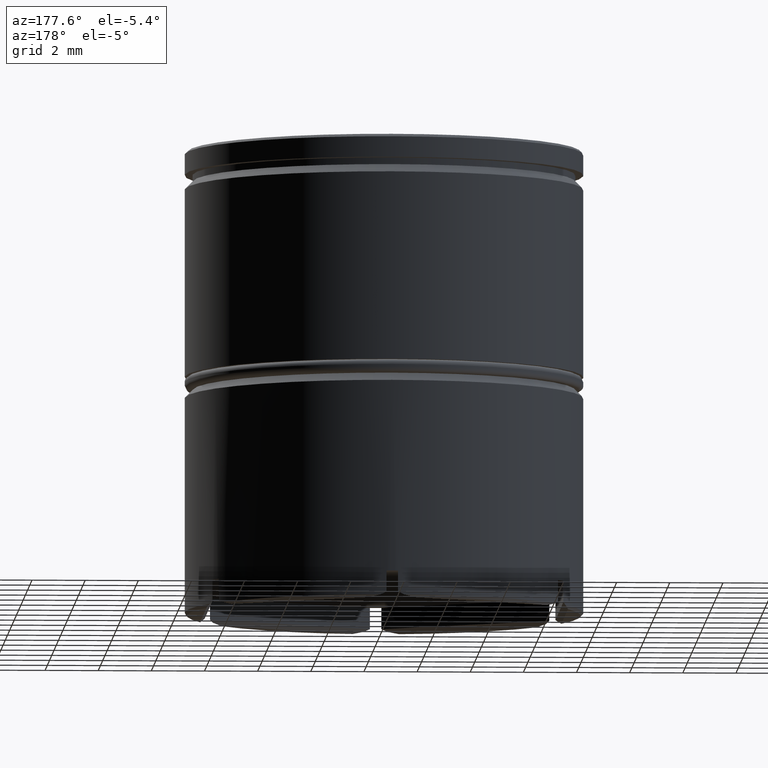
[diagram: clean part render]
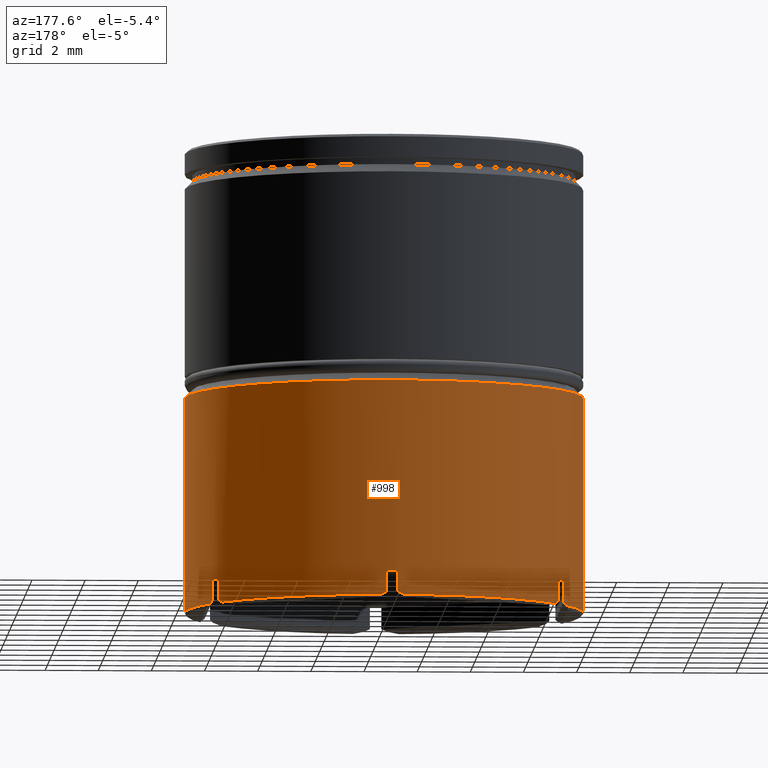
[diagram: same view with one face highlighted and labeled with its STEP entity id]
A machine part, auxiliary view. The second image highlights one B-rep face of the part: STEP entity #998.
In plain terms, the highlighted cylindrical surface (partial cylindrical patch) has radius 7.5 mm, axis along (-0, -0, 1).
Its self-contained STEP definition (entity closure, byte-faithful):
#3 = CIRCLE ( 'NONE', #922, 7.500000000000000000 ) ;
#8 = CARTESIAN_POINT ( 'NONE',  ( 0.000000000000000000, 0.000000000000000000, -17.40000000000000568 ) ) ;
#17 = ORIENTED_EDGE ( 'NONE', *, *, #778, .F. ) ;
#20 = AXIS2_PLACEMENT_3D ( 'NONE', #859, #960, #1207 ) ;
#22 = CARTESIAN_POINT ( 'NONE',  ( -6.700000000000007283, 3.370459909270529408, -17.40000000000000568 ) ) ;
#24 = VECTOR ( 'NONE', #1596, 1000.000000000000000 ) ;
#43 = LINE ( 'NONE', #1532, #552 ) ;
#65 = CARTESIAN_POINT ( 'NONE',  ( -0.2870446246139899404, 7.494852000398866565, -17.33425454225702822 ) ) ;
#87 = DIRECTION ( 'NONE',  ( -0.000000000000000000, -0.000000000000000000, 1.000000000000000000 ) ) ;
#98 = ORIENTED_EDGE ( 'NONE', *, *, #1132, .T. ) ;
#105 = DIRECTION ( 'NONE',  ( -0.000000000000000000, -0.000000000000000000, 1.000000000000000000 ) ) ;
#135 = DIRECTION ( 'NONE',  ( 0.000000000000000000, 0.000000000000000000, -1.000000000000000000 ) ) ;
#138 = EDGE_CURVE ( 'NONE', #805, #1565, #1579, .T. ) ;
#158 = CARTESIAN_POINT ( 'NONE',  ( 6.308493677530949029, 4.056859455903633283, -17.36759018716113090 ) ) ;
#160 = CIRCLE ( 'NONE', #427, 7.500000000000000000 ) ;
#170 = ORIENTED_EDGE ( 'NONE', *, *, #887, .T. ) ;
#172 = VERTEX_POINT ( 'NONE', #1363 ) ;
#176 = DIRECTION ( 'NONE',  ( -0.000000000000000000, -0.000000000000000000, 1.000000000000000000 ) ) ;
#180 = VERTEX_POINT ( 'NONE', #848 ) ;
#185 = CARTESIAN_POINT ( 'NONE',  ( 0.2149554298195403834, 7.496918978032981684, -17.29999999999999716 ) ) ;
#188 = CARTESIAN_POINT ( 'NONE',  ( 0.3590965096301930726, 7.491745512307133481, -17.36759018716113090 ) ) ;
#196 =( BOUNDED_CURVE ( )  B_SPLINE_CURVE ( 3, ( #1438, #188, #902, #815 ),
 .UNSPECIFIED., .F., .T. ) 
 B_SPLINE_CURVE_WITH_KNOTS ( ( 4, 4 ),
 ( 3.607680251568620822, 3.636526779930687070 ),
 .UNSPECIFIED. ) 
 CURVE ( )  GEOMETRIC_REPRESENTATION_ITEM ( )  RATIONAL_B_SPLINE_CURVE ( ( 1.000000000000000000, 0.9999306576855770956, 0.9999306576855770956, 1.000000000000000000 ) ) 
 REPRESENTATION_ITEM ( '' )  );
#204 = DIRECTION ( 'NONE',  ( -0.000000000000000000, -0.000000000000000000, 1.000000000000000000 ) ) ;
#209 = VERTEX_POINT ( 'NONE', #951 ) ;
#212 = AXIS2_PLACEMENT_3D ( 'NONE', #724, #135, #511 ) ;
#238 = VERTEX_POINT ( 'NONE', #624 ) ;
#253 = CARTESIAN_POINT ( 'NONE',  ( -6.385044570180463452, 3.934616351921620403, -17.30000000000000426 ) ) ;
#255 = EDGE_CURVE ( 'NONE', #209, #1185, #3, .T. ) ;
#272 = DIRECTION ( 'NONE',  ( -0.000000000000000000, -0.000000000000000000, 1.000000000000000000 ) ) ;
#282 = AXIS2_PLACEMENT_3D ( 'NONE', #1474, #983, #1485 ) ;
#285 = EDGE_CURVE ( 'NONE', #708, #993, #1114, .T. ) ;
#289 = VECTOR ( 'NONE', #204, 1000.000000000000000 ) ;
#296 = VERTEX_POINT ( 'NONE', #1502 ) ;
#308 = CARTESIAN_POINT ( 'NONE',  ( 6.600000000000004974, 3.562302626111365722, 0.000000000000000000 ) ) ;
#316 = ORIENTED_EDGE ( 'NONE', *, *, #948, .F. ) ;
#325 = VECTOR ( 'NONE', #449, 1000.000000000000000 ) ;
#367 = CARTESIAN_POINT ( 'NONE',  ( -6.268903903865273186, 4.117140250720484396, -17.40000000000000568 ) ) ;
#373 =( BOUNDED_CURVE ( )  B_SPLINE_CURVE ( 3, ( #811, #65, #549, #1077 ),
 .UNSPECIFIED., .F., .T. ) 
 B_SPLINE_CURVE_WITH_KNOTS ( ( 4, 4 ),
 ( 2.646658527248900050, 2.675505055610964522 ),
 .UNSPECIFIED. ) 
 CURVE ( )  GEOMETRIC_REPRESENTATION_ITEM ( )  RATIONAL_B_SPLINE_CURVE ( ( 1.000000000000000000, 0.9999306576855770956, 0.9999306576855770956, 1.000000000000000000 ) ) 
 REPRESENTATION_ITEM ( '' )  );
#387 = EDGE_CURVE ( 'NONE', #1562, #536, #160, .T. ) ;
#403 = VERTEX_POINT ( 'NONE', #559 ) ;
#409 = EDGE_CURVE ( 'NONE', #180, #403, #373, .T. ) ;
#427 = AXIS2_PLACEMENT_3D ( 'NONE', #678, #567, #1327 ) ;
#439 = EDGE_CURVE ( 'NONE', #536, #296, #1146, .T. ) ;
#442 = LINE ( 'NONE', #819, #325 ) ;
#449 = DIRECTION ( 'NONE',  ( -0.000000000000000000, -0.000000000000000000, 1.000000000000000000 ) ) ;
#451 = DIRECTION ( 'NONE',  ( 1.000000000000000000, 0.000000000000000000, 0.000000000000000000 ) ) ;
#453 = CARTESIAN_POINT ( 'NONE',  ( -6.268903903865273186, 4.117140250720484396, -17.40000000000000568 ) ) ;
#454 = VERTEX_POINT ( 'NONE', #185 ) ;
#478 = CARTESIAN_POINT ( 'NONE',  ( 6.700000000000009948, 3.370459909270526300, -17.40000000000000568 ) ) ;
#485 = EDGE_LOOP ( 'NONE', ( #1190, #1065, #807, #1158, #826, #1068, #17, #1091, #851, #170, #985, #1219, #1104, #1055, #790, #603, #904, #929, #853, #98, #316, #1147 ) ) ;
#495 = EDGE_CURVE ( 'NONE', #180, #172, #442, .T. ) ;
#511 = DIRECTION ( 'NONE',  ( 1.000000000000000000, 0.000000000000000000, 0.000000000000000000 ) ) ;
#519 = VECTOR ( 'NONE', #821, 1000.000000000000000 ) ;
#529 =( BOUNDED_CURVE ( )  B_SPLINE_CURVE ( 3, ( #1284, #803, #158, #1305 ),
 .UNSPECIFIED., .F., .T. ) 
 B_SPLINE_CURVE_WITH_KNOTS ( ( 4, 4 ),
 ( 2.646658527248899162, 2.675505055610964966 ),
 .UNSPECIFIED. ) 
 CURVE ( )  GEOMETRIC_REPRESENTATION_ITEM ( )  RATIONAL_B_SPLINE_CURVE ( ( 1.000000000000000000, 0.9999306576855770956, 0.9999306576855770956, 1.000000000000000000 ) ) 
 REPRESENTATION_ITEM ( '' )  );
#536 = VERTEX_POINT ( 'NONE', #478 ) ;
#542 = CARTESIAN_POINT ( 'NONE',  ( -7.500000000000000000, 9.184850993605147944E-16, -17.40000000000000568 ) ) ;
#549 = CARTESIAN_POINT ( 'NONE',  ( -0.3590965096301862447, 7.491745512307136146, -17.36759018716113445 ) ) ;
#552 = VECTOR ( 'NONE', #176, 1000.000000000000000 ) ;
#558 = VERTEX_POINT ( 'NONE', #1352 ) ;
#559 = CARTESIAN_POINT ( 'NONE',  ( -0.4310960961347331533, 7.487600159991009363, -17.40000000000000568 ) ) ;
#561 = EDGE_CURVE ( 'NONE', #1583, #172, #1292, .T. ) ;
#567 = DIRECTION ( 'NONE',  ( -0.000000000000000000, -0.000000000000000000, 1.000000000000000000 ) ) ;
#574 = CARTESIAN_POINT ( 'NONE',  ( 0.000000000000000000, 0.000000000000000000, -17.40000000000000568 ) ) ;
#583 = VECTOR ( 'NONE', #1462, 1000.000000000000000 ) ;
#603 = ORIENTED_EDGE ( 'NONE', *, *, #409, .T. ) ;
#605 = VECTOR ( 'NONE', #636, 1000.000000000000000 ) ;
#609 = EDGE_CURVE ( 'NONE', #1565, #789, #1205, .T. ) ;
#624 = CARTESIAN_POINT ( 'NONE',  ( -6.600000000000003197, 3.562302626111366610, -16.50000000000000000 ) ) ;
#635 = DIRECTION ( 'NONE',  ( 0.000000000000000000, 0.000000000000000000, -1.000000000000000000 ) ) ;
#636 = DIRECTION ( 'NONE',  ( -0.000000000000000000, -0.000000000000000000, 1.000000000000000000 ) ) ;
#647 = CARTESIAN_POINT ( 'NONE',  ( -6.634254542257025378, 3.498838063263955522, -17.33425454225702467 ) ) ;
#655 = CIRCLE ( 'NONE', #282, 7.500000000000000000 ) ;
#671 = EDGE_CURVE ( 'NONE', #1057, #1107, #1328, .T. ) ;
#672 = CARTESIAN_POINT ( 'NONE',  ( 6.385044570180465229, 3.934616351921614186, -17.29999999999999716 ) ) ;
#676 = CARTESIAN_POINT ( 'NONE',  ( 0.2149554298195403834, 7.496918978032981684, -16.50000000000000000 ) ) ;
#678 = CARTESIAN_POINT ( 'NONE',  ( 0.000000000000000000, 0.000000000000000000, -17.40000000000000568 ) ) ;
#692 = CARTESIAN_POINT ( 'NONE',  ( 7.500000000000000000, 0.000000000000000000, -17.40000000000000568 ) ) ;
#708 = VERTEX_POINT ( 'NONE', #876 ) ;
#713 = CARTESIAN_POINT ( 'NONE',  ( 0.000000000000000000, 0.000000000000000000, -16.50000000000000000 ) ) ;
#721 = AXIS2_PLACEMENT_3D ( 'NONE', #713, #1212, #1593 ) ;
#723 = EDGE_CURVE ( 'NONE', #558, #961, #770, .T. ) ;
#724 = CARTESIAN_POINT ( 'NONE',  ( 0.000000000000000000, 0.000000000000000000, -9.299999999999998934 ) ) ;
#746 = AXIS2_PLACEMENT_3D ( 'NONE', #574, #105, #828 ) ;
#751 = LINE ( 'NONE', #1014, #605 ) ;
#763 = CARTESIAN_POINT ( 'NONE',  ( -6.385044570180463452, 3.934616351921620403, 0.000000000000000000 ) ) ;
#769 = DIRECTION ( 'NONE',  ( -1.000000000000000000, 0.000000000000000000, 0.000000000000000000 ) ) ;
#770 = LINE ( 'NONE', #763, #1414 ) ;
#773 = EDGE_CURVE ( 'NONE', #1562, #789, #43, .T. ) ;
#775 = DIRECTION ( 'NONE',  ( -1.000000000000000000, -8.881784197001252323E-16, 0.000000000000000000 ) ) ;
#778 = EDGE_CURVE ( 'NONE', #708, #296, #1187, .T. ) ;
#789 = VERTEX_POINT ( 'NONE', #1062 ) ;
#790 = ORIENTED_EDGE ( 'NONE', *, *, #495, .F. ) ;
#794 = DIRECTION ( 'NONE',  ( -0.000000000000000000, -0.000000000000000000, 1.000000000000000000 ) ) ;
#803 = CARTESIAN_POINT ( 'NONE',  ( 6.347209917643041877, 3.996013937134915484, -17.33425454225702111 ) ) ;
#805 = VERTEX_POINT ( 'NONE', #542 ) ;
#807 = ORIENTED_EDGE ( 'NONE', *, *, #609, .T. ) ;
#811 = CARTESIAN_POINT ( 'NONE',  ( -0.2149554298195408275, 7.496918978032982572, -17.30000000000000426 ) ) ;
#814 = CIRCLE ( 'NONE', #746, 7.500000000000000000 ) ;
#815 = CARTESIAN_POINT ( 'NONE',  ( 0.2149554298195403834, 7.496918978032981684, -17.29999999999999716 ) ) ;
#819 = CARTESIAN_POINT ( 'NONE',  ( -0.2149554298195408275, 7.496918978032982572, 0.000000000000000000 ) ) ;
#821 = DIRECTION ( 'NONE',  ( 0.000000000000000000, 0.000000000000000000, -1.000000000000000000 ) ) ;
#826 = ORIENTED_EDGE ( 'NONE', *, *, #387, .T. ) ;
#828 = DIRECTION ( 'NONE',  ( -1.000000000000000000, -8.881784197001252323E-16, 0.000000000000000000 ) ) ;
#848 = CARTESIAN_POINT ( 'NONE',  ( -0.2149554298195408275, 7.496918978032982572, -17.30000000000000426 ) ) ;
#851 = ORIENTED_EDGE ( 'NONE', *, *, #1301, .F. ) ;
#853 = ORIENTED_EDGE ( 'NONE', *, *, #723, .F. ) ;
#859 = CARTESIAN_POINT ( 'NONE',  ( 0.000000000000000000, 0.000000000000000000, -16.50000000000000000 ) ) ;
#864 = FACE_OUTER_BOUND ( 'NONE', #485, .T. ) ;
#867 = CARTESIAN_POINT ( 'NONE',  ( -6.308493677530949917, 4.056859455903631506, -17.36759018716113090 ) ) ;
#876 = CARTESIAN_POINT ( 'NONE',  ( 6.600000000000003197, 3.562302626111367498, -16.50000000000000000 ) ) ;
#884 = CARTESIAN_POINT ( 'NONE',  ( -6.600000000000004974, 3.562302626111364834, -17.30000000000000426 ) ) ;
#887 = EDGE_CURVE ( 'NONE', #1536, #209, #529, .T. ) ;
#895 = EDGE_CURVE ( 'NONE', #403, #1156, #814, .T. ) ;
#902 = CARTESIAN_POINT ( 'NONE',  ( 0.2870446246139922164, 7.494852000398866565, -17.33425454225702111 ) ) ;
#904 = ORIENTED_EDGE ( 'NONE', *, *, #895, .T. ) ;
#922 = AXIS2_PLACEMENT_3D ( 'NONE', #8, #272, #775 ) ;
#929 = ORIENTED_EDGE ( 'NONE', *, *, #1317, .T. ) ;
#948 = EDGE_CURVE ( 'NONE', #1057, #238, #1362, .T. ) ;
#951 = CARTESIAN_POINT ( 'NONE',  ( 6.268903903865270522, 4.117140250720489725, -17.40000000000000568 ) ) ;
#960 = DIRECTION ( 'NONE',  ( -0.000000000000000000, -0.000000000000000000, 1.000000000000000000 ) ) ;
#961 = VERTEX_POINT ( 'NONE', #988 ) ;
#969 = CARTESIAN_POINT ( 'NONE',  ( 0.4310960961347474196, 7.487600159991008475, -17.40000000000000568 ) ) ;
#981 = CARTESIAN_POINT ( 'NONE',  ( 0.000000000000000000, 0.000000000000000000, 0.000000000000000000 ) ) ;
#983 = DIRECTION ( 'NONE',  ( -0.000000000000000000, -0.000000000000000000, 1.000000000000000000 ) ) ;
#985 = ORIENTED_EDGE ( 'NONE', *, *, #255, .T. ) ;
#988 = CARTESIAN_POINT ( 'NONE',  ( -6.385044570180463452, 3.934616351921620403, -17.30000000000000426 ) ) ;
#993 = VERTEX_POINT ( 'NONE', #1491 ) ;
#998 = ADVANCED_FACE ( 'NONE', ( #864 ), #1204, .T. ) ;
#1003 = EDGE_CURVE ( 'NONE', #1583, #454, #1086, .T. ) ;
#1004 = AXIS2_PLACEMENT_3D ( 'NONE', #981, #87, #451 ) ;
#1010 = CARTESIAN_POINT ( 'NONE',  ( -6.600000000000004974, 3.562302626111364834, -17.30000000000000426 ) ) ;
#1014 = CARTESIAN_POINT ( 'NONE',  ( 6.385044570180465229, 3.934616351921614186, 0.000000000000000000 ) ) ;
#1038 =( BOUNDED_CURVE ( )  B_SPLINE_CURVE ( 3, ( #367, #867, #1267, #253 ),
 .UNSPECIFIED., .F., .T. ) 
 B_SPLINE_CURVE_WITH_KNOTS ( ( 4, 4 ),
 ( 3.607680251568622598, 3.636526779930687070 ),
 .UNSPECIFIED. ) 
 CURVE ( )  GEOMETRIC_REPRESENTATION_ITEM ( )  RATIONAL_B_SPLINE_CURVE ( ( 1.000000000000000000, 0.9999306576855770956, 0.9999306576855770956, 1.000000000000000000 ) ) 
 REPRESENTATION_ITEM ( '' )  );
#1055 = ORIENTED_EDGE ( 'NONE', *, *, #561, .T. ) ;
#1057 = VERTEX_POINT ( 'NONE', #1010 ) ;
#1062 = CARTESIAN_POINT ( 'NONE',  ( 7.500000000000000000, 0.000000000000000000, -9.299999999999998934 ) ) ;
#1065 = ORIENTED_EDGE ( 'NONE', *, *, #138, .T. ) ;
#1068 = ORIENTED_EDGE ( 'NONE', *, *, #439, .T. ) ;
#1076 = CARTESIAN_POINT ( 'NONE',  ( -7.500000000000000000, 9.184850993605147944E-16, -9.299999999999998934 ) ) ;
#1077 = CARTESIAN_POINT ( 'NONE',  ( -0.4310960961347331533, 7.487600159991009363, -17.40000000000000568 ) ) ;
#1086 = LINE ( 'NONE', #1588, #583 ) ;
#1091 = ORIENTED_EDGE ( 'NONE', *, *, #285, .T. ) ;
#1104 = ORIENTED_EDGE ( 'NONE', *, *, #1003, .F. ) ;
#1107 = VERTEX_POINT ( 'NONE', #1506 ) ;
#1114 = CIRCLE ( 'NONE', #1454, 7.500000000000000000 ) ;
#1132 = EDGE_CURVE ( 'NONE', #558, #238, #1520, .T. ) ;
#1146 =( BOUNDED_CURVE ( )  B_SPLINE_CURVE ( 3, ( #1177, #1461, #1569, #1194 ),
 .UNSPECIFIED., .F., .T. ) 
 B_SPLINE_CURVE_WITH_KNOTS ( ( 4, 4 ),
 ( 3.607680251568622154, 3.636526779930687070 ),
 .UNSPECIFIED. ) 
 CURVE ( )  GEOMETRIC_REPRESENTATION_ITEM ( )  RATIONAL_B_SPLINE_CURVE ( ( 1.000000000000000000, 0.9999306576855770956, 0.9999306576855770956, 1.000000000000000000 ) ) 
 REPRESENTATION_ITEM ( '' )  );
#1147 = ORIENTED_EDGE ( 'NONE', *, *, #671, .T. ) ;
#1156 = VERTEX_POINT ( 'NONE', #453 ) ;
#1158 = ORIENTED_EDGE ( 'NONE', *, *, #773, .F. ) ;
#1177 = CARTESIAN_POINT ( 'NONE',  ( 6.700000000000009948, 3.370459909270526300, -17.40000000000000568 ) ) ;
#1185 = VERTEX_POINT ( 'NONE', #969 ) ;
#1187 = LINE ( 'NONE', #308, #519 ) ;
#1190 = ORIENTED_EDGE ( 'NONE', *, *, #1241, .T. ) ;
#1194 = CARTESIAN_POINT ( 'NONE',  ( 6.600000000000004974, 3.562302626111365722, -17.30000000000000426 ) ) ;
#1204 = CYLINDRICAL_SURFACE ( 'NONE', #1004, 7.500000000000000000 ) ;
#1205 = CIRCLE ( 'NONE', #212, 7.500000000000000000 ) ;
#1207 = DIRECTION ( 'NONE',  ( -1.000000000000000000, -5.595524044110788964E-14, 0.000000000000000000 ) ) ;
#1212 = DIRECTION ( 'NONE',  ( -0.000000000000000000, -0.000000000000000000, 1.000000000000000000 ) ) ;
#1215 = CARTESIAN_POINT ( 'NONE',  ( -6.600000000000004974, 3.562302626111364834, 0.000000000000000000 ) ) ;
#1219 = ORIENTED_EDGE ( 'NONE', *, *, #1490, .T. ) ;
#1241 = EDGE_CURVE ( 'NONE', #1107, #805, #655, .T. ) ;
#1267 = CARTESIAN_POINT ( 'NONE',  ( -6.347209917643041877, 3.996013937134917260, -17.33425454225702467 ) ) ;
#1274 = CARTESIAN_POINT ( 'NONE',  ( 0.000000000000000000, 0.000000000000000000, -16.50000000000000000 ) ) ;
#1284 = CARTESIAN_POINT ( 'NONE',  ( 6.385044570180465229, 3.934616351921614186, -17.29999999999999716 ) ) ;
#1292 = CIRCLE ( 'NONE', #721, 7.500000000000000000 ) ;
#1301 = EDGE_CURVE ( 'NONE', #1536, #993, #751, .T. ) ;
#1305 = CARTESIAN_POINT ( 'NONE',  ( 6.268903903865270522, 4.117140250720489725, -17.40000000000000568 ) ) ;
#1317 = EDGE_CURVE ( 'NONE', #1156, #961, #1038, .T. ) ;
#1327 = DIRECTION ( 'NONE',  ( -1.000000000000000000, 0.000000000000000000, 0.000000000000000000 ) ) ;
#1328 =( BOUNDED_CURVE ( )  B_SPLINE_CURVE ( 3, ( #884, #647, #1507, #22 ),
 .UNSPECIFIED., .F., .T. ) 
 B_SPLINE_CURVE_WITH_KNOTS ( ( 4, 4 ),
 ( 2.646658527248899162, 2.675505055610963190 ),
 .UNSPECIFIED. ) 
 CURVE ( )  GEOMETRIC_REPRESENTATION_ITEM ( )  RATIONAL_B_SPLINE_CURVE ( ( 1.000000000000000000, 0.9999306576855770956, 0.9999306576855770956, 1.000000000000000000 ) ) 
 REPRESENTATION_ITEM ( '' )  );
#1352 = CARTESIAN_POINT ( 'NONE',  ( -6.385044570180463452, 3.934616351921620403, -16.50000000000000000 ) ) ;
#1362 = LINE ( 'NONE', #1215, #289 ) ;
#1363 = CARTESIAN_POINT ( 'NONE',  ( -0.2149554298195408275, 7.496918978032982572, -16.50000000000000000 ) ) ;
#1414 = VECTOR ( 'NONE', #635, 1000.000000000000000 ) ;
#1438 = CARTESIAN_POINT ( 'NONE',  ( 0.4310960961347474196, 7.487600159991008475, -17.40000000000000568 ) ) ;
#1454 = AXIS2_PLACEMENT_3D ( 'NONE', #1274, #794, #769 ) ;
#1461 = CARTESIAN_POINT ( 'NONE',  ( 6.667590187161134274, 3.434886056403504639, -17.36759018716113090 ) ) ;
#1462 = DIRECTION ( 'NONE',  ( 0.000000000000000000, 0.000000000000000000, -1.000000000000000000 ) ) ;
#1474 = CARTESIAN_POINT ( 'NONE',  ( 0.000000000000000000, 0.000000000000000000, -17.40000000000000568 ) ) ;
#1484 = CARTESIAN_POINT ( 'NONE',  ( -7.500000000000000000, 9.184850993605147944E-16, 0.000000000000000000 ) ) ;
#1485 = DIRECTION ( 'NONE',  ( -1.000000000000000000, -3.552713678800500929E-15, 0.000000000000000000 ) ) ;
#1490 = EDGE_CURVE ( 'NONE', #1185, #454, #196, .T. ) ;
#1491 = CARTESIAN_POINT ( 'NONE',  ( 6.385044570180465229, 3.934616351921614186, -16.50000000000000000 ) ) ;
#1502 = CARTESIAN_POINT ( 'NONE',  ( 6.600000000000004974, 3.562302626111365722, -17.30000000000000426 ) ) ;
#1506 = CARTESIAN_POINT ( 'NONE',  ( -6.700000000000007283, 3.370459909270529408, -17.40000000000000568 ) ) ;
#1507 = CARTESIAN_POINT ( 'NONE',  ( -6.667590187161131610, 3.434886056403509524, -17.36759018716113090 ) ) ;
#1520 = CIRCLE ( 'NONE', #20, 7.500000000000000000 ) ;
#1532 = CARTESIAN_POINT ( 'NONE',  ( 7.500000000000000000, 0.000000000000000000, 0.000000000000000000 ) ) ;
#1536 = VERTEX_POINT ( 'NONE', #672 ) ;
#1562 = VERTEX_POINT ( 'NONE', #692 ) ;
#1565 = VERTEX_POINT ( 'NONE', #1076 ) ;
#1569 = CARTESIAN_POINT ( 'NONE',  ( 6.634254542257028042, 3.498838063263951970, -17.33425454225702467 ) ) ;
#1579 = LINE ( 'NONE', #1484, #24 ) ;
#1583 = VERTEX_POINT ( 'NONE', #676 ) ;
#1588 = CARTESIAN_POINT ( 'NONE',  ( 0.2149554298195403834, 7.496918978032981684, 0.000000000000000000 ) ) ;
#1593 = DIRECTION ( 'NONE',  ( -1.000000000000000000, 7.283063041541026905E-14, 0.000000000000000000 ) ) ;
#1596 = DIRECTION ( 'NONE',  ( -0.000000000000000000, -0.000000000000000000, 1.000000000000000000 ) ) ;